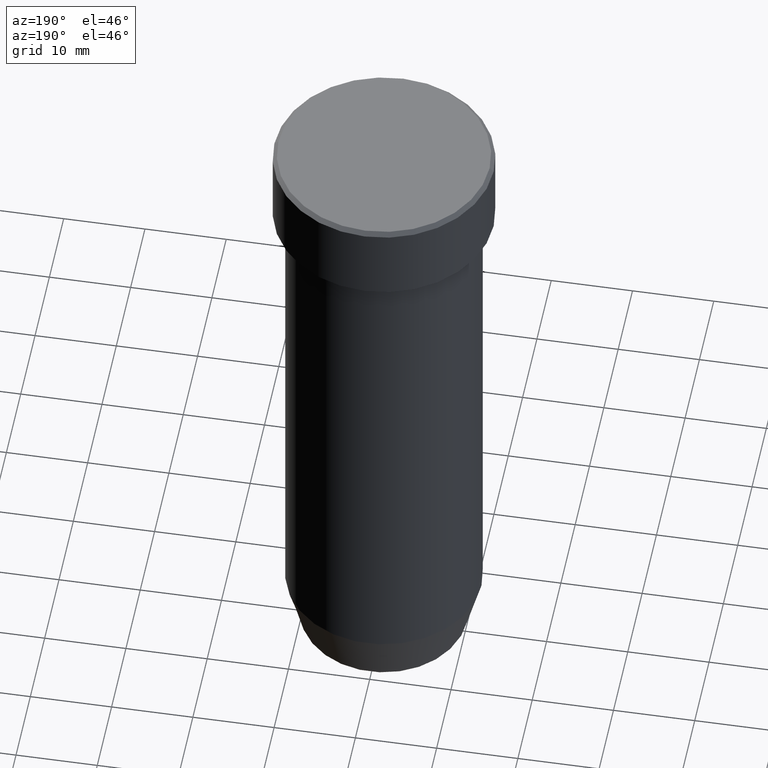
[diagram: clean part render]
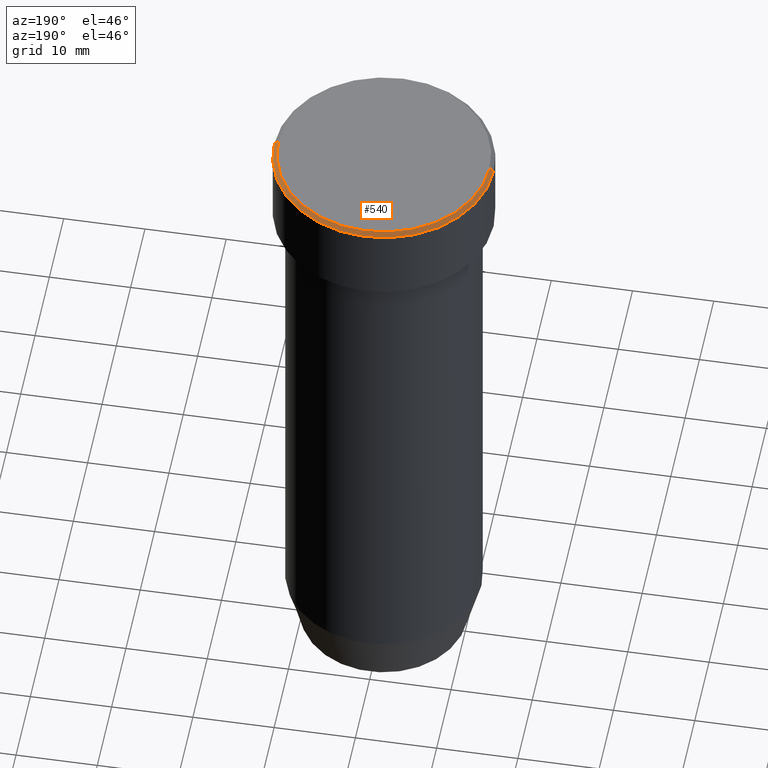
[diagram: same view with one face highlighted and labeled with its STEP entity id]
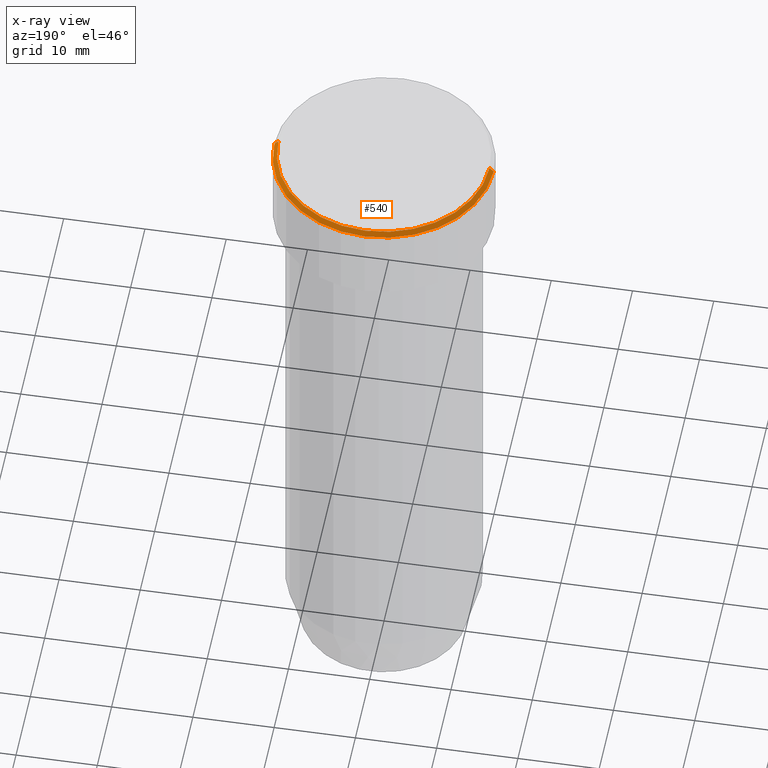
[diagram: x-ray of the same camera — body ghosted, the highlighted face saturated]
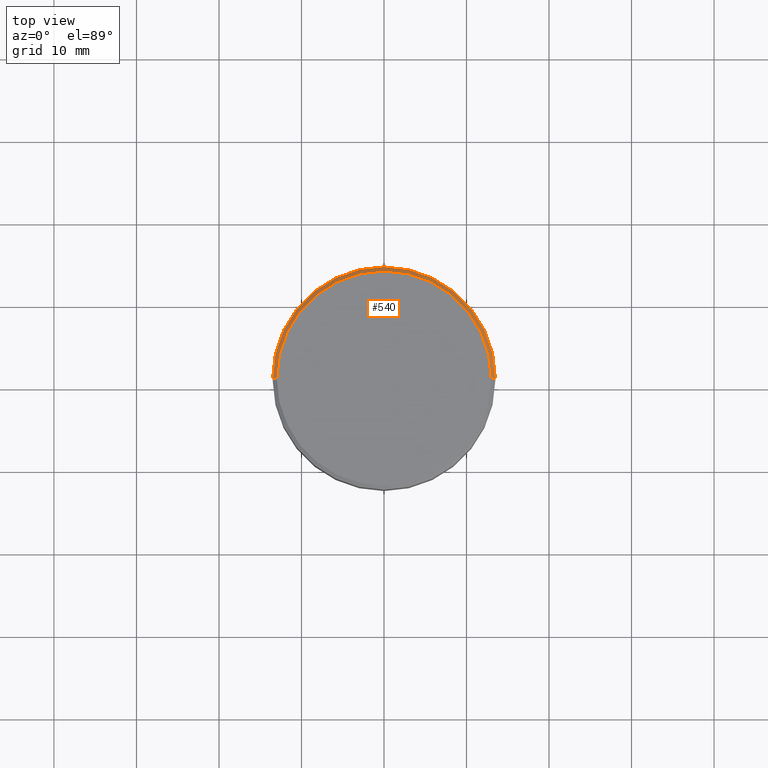
[diagram: same view with one face highlighted and labeled with its STEP entity id]
A machine part, auxiliary view. The second image highlights one B-rep face of the part: STEP entity #540.
The next image is the same camera in x-ray: the body ghosted, the highlighted face saturated — about 0% of this face is hidden behind the body in this view.
A second angle (top view) of the same face is appended — the face is thin or edge-on in the first view.
In plain terms, the highlighted conical surface has half-angle 45 deg.
Its self-contained STEP definition (entity closure, byte-faithful):
#3 = CARTESIAN_POINT ( 'NONE',  ( 0.000000000000000000, 0.000000000000000000, 0.000000000000000000 ) ) ;
#12 = CARTESIAN_POINT ( 'NONE',  ( 0.000000000000000000, 0.000000000000000000, 0.000000000000000000 ) ) ;
#17 = CARTESIAN_POINT ( 'NONE',  ( -13.50000000000000000, 1.653273178848926867E-15, -0.5000000000000091038 ) ) ;
#33 = CIRCLE ( 'NONE', #316, 12.99999999999999645 ) ;
#37 = CARTESIAN_POINT ( 'NONE',  ( -12.99999999999999645, 0.000000000000000000, 0.000000000000000000 ) ) ;
#54 = CARTESIAN_POINT ( 'NONE',  ( 12.99999999999999645, 1.622657008870242882E-15, 0.000000000000000000 ) ) ;
#59 = ORIENTED_EDGE ( 'NONE', *, *, #204, .F. ) ;
#85 = DIRECTION ( 'NONE',  ( -0.7071067811865439090, 0.000000000000000000, -0.7071067811865512365 ) ) ;
#99 = DIRECTION ( 'NONE',  ( 1.000000000000000000, 0.000000000000000000, 0.000000000000000000 ) ) ;
#111 = ORIENTED_EDGE ( 'NONE', *, *, #561, .F. ) ;
#122 = VECTOR ( 'NONE', #436, 1000.000000000000000 ) ;
#125 = EDGE_CURVE ( 'NONE', #510, #215, #449, .T. ) ;
#131 = AXIS2_PLACEMENT_3D ( 'NONE', #421, #269, #99 ) ;
#148 = EDGE_LOOP ( 'NONE', ( #59, #341, #111, #420 ) ) ;
#191 = CARTESIAN_POINT ( 'NONE',  ( -12.99999999999999645, 0.000000000000000000, 0.000000000000000000 ) ) ;
#204 = EDGE_CURVE ( 'NONE', #217, #510, #33, .T. ) ;
#210 = CARTESIAN_POINT ( 'NONE',  ( 12.99999999999999645, 1.592040838891558701E-15, 0.000000000000000000 ) ) ;
#215 = VERTEX_POINT ( 'NONE', #17 ) ;
#217 = VERTEX_POINT ( 'NONE', #54 ) ;
#269 = DIRECTION ( 'NONE',  ( 0.000000000000000000, 0.000000000000000000, -1.000000000000000000 ) ) ;
#282 = FACE_OUTER_BOUND ( 'NONE', #148, .T. ) ;
#315 = LINE ( 'NONE', #210, #122 ) ;
#316 = AXIS2_PLACEMENT_3D ( 'NONE', #12, #380, #429 ) ;
#329 = CIRCLE ( 'NONE', #131, 13.50000000000000000 ) ;
#335 = DIRECTION ( 'NONE',  ( -1.000000000000000000, 0.000000000000000000, 0.000000000000000000 ) ) ;
#341 = ORIENTED_EDGE ( 'NONE', *, *, #376, .T. ) ;
#376 = EDGE_CURVE ( 'NONE', #217, #571, #315, .T. ) ;
#380 = DIRECTION ( 'NONE',  ( -0.000000000000000000, -0.000000000000000000, 1.000000000000000000 ) ) ;
#385 = AXIS2_PLACEMENT_3D ( 'NONE', #3, #448, #335 ) ;
#420 = ORIENTED_EDGE ( 'NONE', *, *, #125, .F. ) ;
#421 = CARTESIAN_POINT ( 'NONE',  ( 0.000000000000000000, 0.000000000000000000, -0.5000000000000091038 ) ) ;
#429 = DIRECTION ( 'NONE',  ( 1.000000000000000000, 0.000000000000000000, 0.000000000000000000 ) ) ;
#436 = DIRECTION ( 'NONE',  ( 0.7071067811865439090, 8.659560562354888485E-17, -0.7071067811865512365 ) ) ;
#448 = DIRECTION ( 'NONE',  ( 0.000000000000000000, 0.000000000000000000, -1.000000000000000000 ) ) ;
#449 = LINE ( 'NONE', #37, #543 ) ;
#468 = CARTESIAN_POINT ( 'NONE',  ( 13.50000000000000000, 0.000000000000000000, -0.5000000000000091038 ) ) ;
#510 = VERTEX_POINT ( 'NONE', #191 ) ;
#540 = ADVANCED_FACE ( 'NONE', ( #282 ), #555, .T. ) ;
#543 = VECTOR ( 'NONE', #85, 1000.000000000000000 ) ;
#555 = CONICAL_SURFACE ( 'NONE', #385, 12.99999999999999645, 0.7853981633974431720 ) ;
#561 = EDGE_CURVE ( 'NONE', #215, #571, #329, .T. ) ;
#571 = VERTEX_POINT ( 'NONE', #468 ) ;